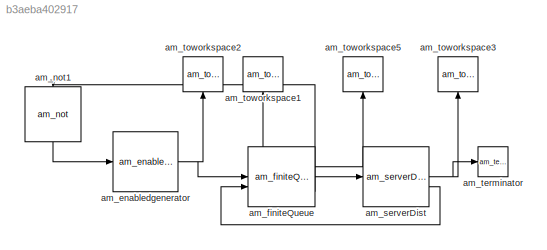
MODEL slx_b3aeba402917
KIND model
CONFIG AbsTol = auto
CONFIG EnableMultiTasking = off
CONFIG FixedStep = auto
CONFIG MaxStep = auto
CONFIG MinStep = auto
CONFIG RelTol = 1e-3
CONFIG SampleTimeConstraint = Unconstrained
CONFIG SolverName = VariableStepAuto
CONFIG StartTime = 0.0
CONFIG StopTime = 10.0
BLOCK [Reference] am_enabledgenerator  REF=NSA_DEVS_SOURCES/am_enabledgenerator
  SourceBlock = NSA_DEVS_SOURCES/am_enabledgenerator
  SourceProductName = Sources
  SourceType = EnabledGenerator
BLOCK [Reference] am_finiteQueue  REF=tutLib/am_finiteQueue
  SourceBlock = tutLib/am_finiteQueue
  SourceType = FiniteQueue
BLOCK [Reference] am_not1  REF=NSA_DEVS_MATH_OPERATIONS/am_not
  NameLocation = left
  SourceBlock = NSA_DEVS_MATH_OPERATIONS/am_not
  SourceProductName = Math Operations
  SourceType = Notgate
BLOCK [Reference] am_serverDist  REF=NSA_DEVS_LOGISTICS/am_serverDist
  SourceBlock = NSA_DEVS_LOGISTICS/am_serverDist
  SourceProductName = Logistics
  SourceType = ServerDist
BLOCK [Reference] am_terminator  REF=NSA_DEVS_LOGISTICS/am_terminator
  SourceBlock = NSA_DEVS_LOGISTICS/am_terminator
  SourceProductName = Logistics
  SourceType = Terminator
BLOCK [Reference] am_toworkspace1  REF=NSA_DEVS_SINKS/am_toworkspace
  NameLocation = right
  SourceBlock = NSA_DEVS_SINKS/am_toworkspace
  SourceProductName = Sinks
  SourceType = ToWorkspace
BLOCK [Reference] am_toworkspace2  REF=NSA_DEVS_SINKS/am_toworkspace
  NameLocation = right
  SourceBlock = NSA_DEVS_SINKS/am_toworkspace
  SourceProductName = Sinks
  SourceType = ToWorkspace
BLOCK [Reference] am_toworkspace3  REF=NSA_DEVS_SINKS/am_toworkspace
  NameLocation = right
  SourceBlock = NSA_DEVS_SINKS/am_toworkspace
  SourceProductName = Sinks
  SourceType = ToWorkspace
BLOCK [Reference] am_toworkspace5  REF=NSA_DEVS_SINKS/am_toworkspace
  NameLocation = right
  SourceBlock = NSA_DEVS_SINKS/am_toworkspace
  SourceProductName = Sinks
  SourceType = ToWorkspace
NET am_enabledgenerator:1 -> am_finiteQueue:1, am_toworkspace2:1
LINE am_finiteQueue:1 -> am_serverDist:1
LINE am_finiteQueue:2 -> am_toworkspace1:1
NET am_finiteQueue:3 -> am_not1:1, am_toworkspace5:1
LINE am_not1:1 -> am_enabledgenerator:1
NET am_serverDist:1 -> am_terminator:1, am_toworkspace3:1
LINE am_serverDist:2 -> am_finiteQueue:2
note: NET lines group one-source signal fan-out (src -> all destinations, sorted); 1:1 wires keep LINE
